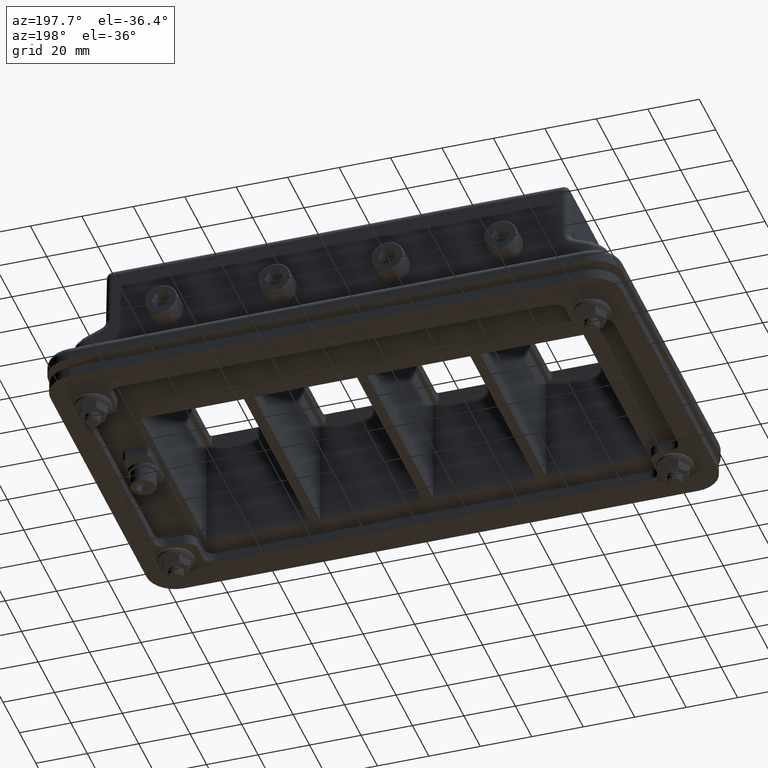
[diagram: clean part render]
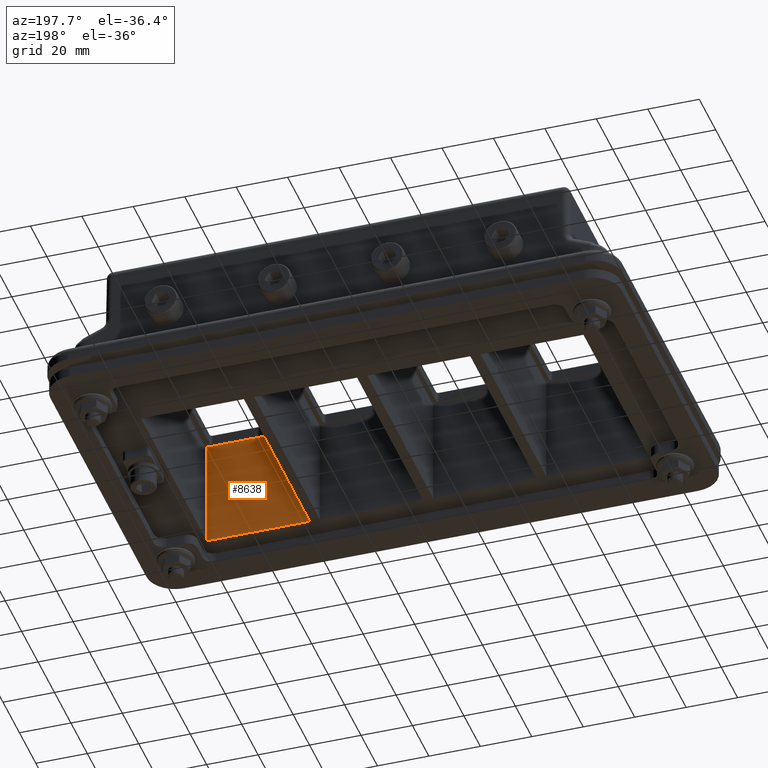
[diagram: same view with one face highlighted and labeled with its STEP entity id]
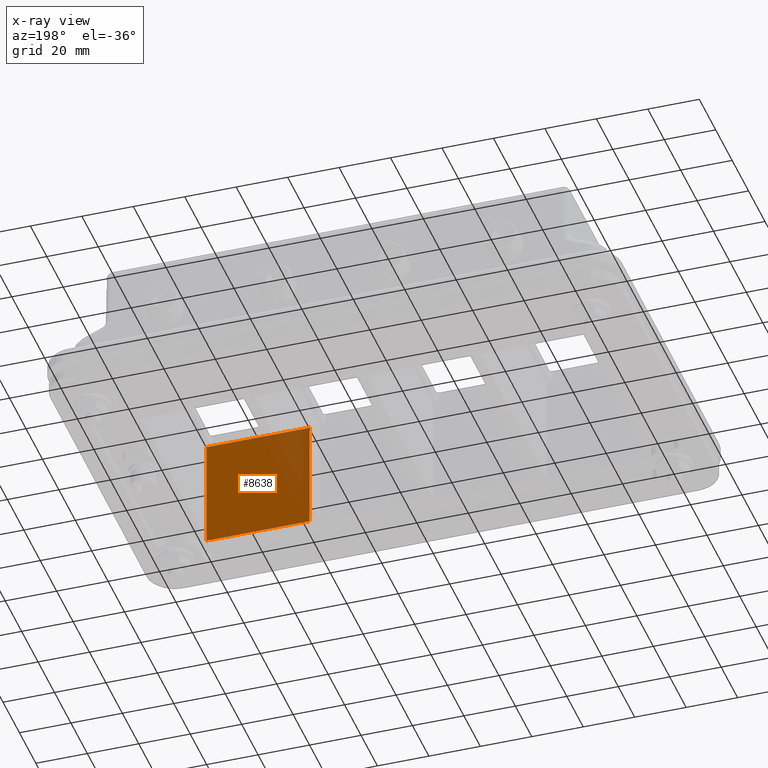
[diagram: x-ray of the same camera — body ghosted, the highlighted face saturated]
A machine part, auxiliary view. The second image highlights one B-rep face of the part: STEP entity #8638.
The next image is the same camera in x-ray: the body ghosted, the highlighted face saturated — about 15% of this face is hidden behind the body in this view.
In plain terms, the highlighted planar face has unit normal (-0, -1, -0).
Its self-contained STEP definition (entity closure, byte-faithful):
#543=LINE('',#13004,#1280);
#643=LINE('',#13272,#1380);
#644=LINE('',#13274,#1381);
#645=LINE('',#13275,#1382);
#1280=VECTOR('',#10518,10.);
#1380=VECTOR('',#10780,10.);
#1381=VECTOR('',#10781,10.);
#1382=VECTOR('',#10782,10.);
#2177=FACE_OUTER_BOUND('',#2701,.T.);
#2701=EDGE_LOOP('',(#6308,#6309,#6310,#6311));
#3589=VERTEX_POINT('',#13001);
#3590=VERTEX_POINT('',#13003);
#3677=VERTEX_POINT('',#13271);
#3678=VERTEX_POINT('',#13273);
#4498=EDGE_CURVE('',#3589,#3590,#543,.T.);
#4630=EDGE_CURVE('',#3677,#3589,#643,.T.);
#4631=EDGE_CURVE('',#3677,#3678,#644,.T.);
#4632=EDGE_CURVE('',#3678,#3590,#645,.T.);
#6308=ORIENTED_EDGE('',*,*,#4630,.F.);
#6309=ORIENTED_EDGE('',*,*,#4631,.T.);
#6310=ORIENTED_EDGE('',*,*,#4632,.T.);
#6311=ORIENTED_EDGE('',*,*,#4498,.F.);
#7802=PLANE('',#9320);
#8638=ADVANCED_FACE('',(#2177),#7802,.F.);
#9320=AXIS2_PLACEMENT_3D('',#13270,#10778,#10779);
#10518=DIRECTION('',(1.,-2.22044604925031E-16,1.22464679914735E-16));
#10778=DIRECTION('center_axis',(-2.22044604925031E-16,-1.,-2.71926214689378E-32));
#10779=DIRECTION('ref_axis',(1.,-2.22044604925031E-16,1.22464679914735E-16));
#10780=DIRECTION('',(1.22464679914735E-16,0.,-1.));
#10781=DIRECTION('',(1.,-2.22044604925031E-16,1.22464679914735E-16));
#10782=DIRECTION('',(1.22464679914735E-16,0.,-1.));
#13001=CARTESIAN_POINT('',(46.,-53.5,-43.));
#13003=CARTESIAN_POINT('',(86.,-53.5,-43.));
#13004=CARTESIAN_POINT('',(23.,-53.5,-43.));
#13270=CARTESIAN_POINT('Origin',(46.,-53.5,-43.));
#13271=CARTESIAN_POINT('',(46.,-53.5,8.88178419700125E-15));
#13272=CARTESIAN_POINT('',(46.,-53.5,-43.));
#13273=CARTESIAN_POINT('',(86.,-53.5,1.33226762955019E-14));
#13274=CARTESIAN_POINT('',(56.,-53.5,8.88178419700125E-15));
#13275=CARTESIAN_POINT('',(86.,-53.5,-43.));